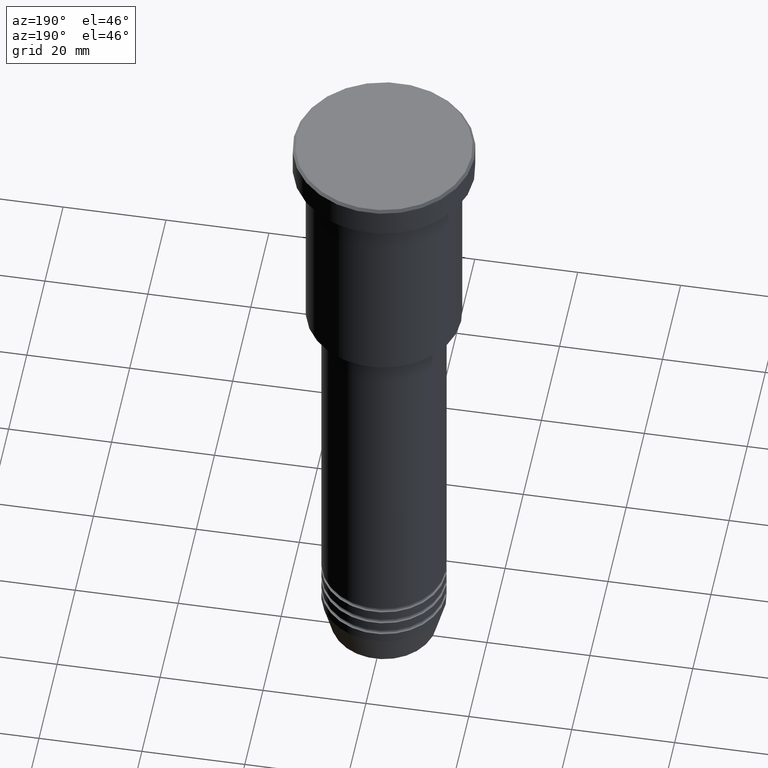
[diagram: clean part render]
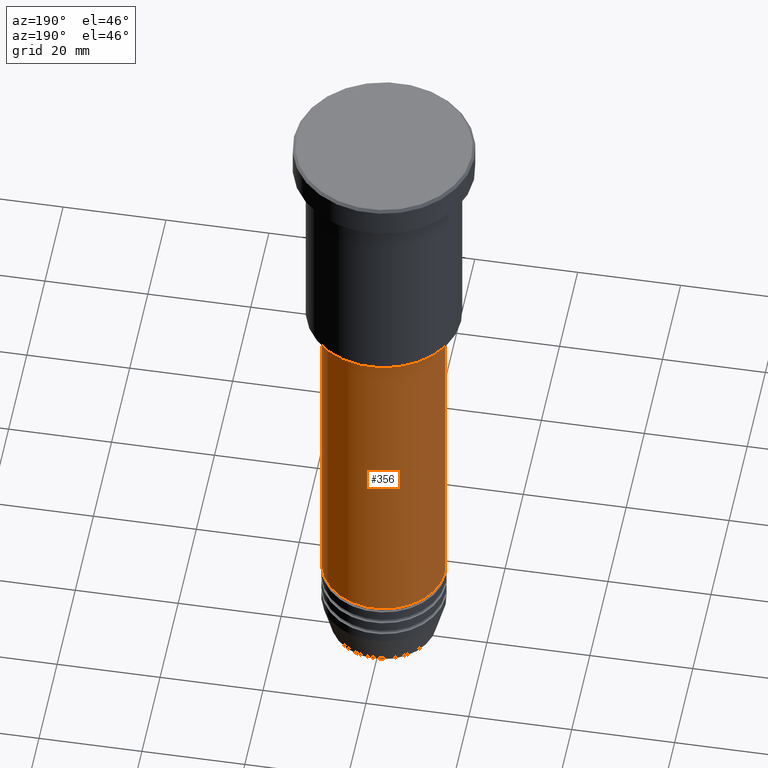
[diagram: same view with one face highlighted and labeled with its STEP entity id]
A machine part, auxiliary view. The second image highlights one B-rep face of the part: STEP entity #356.
In plain terms, the highlighted cylindrical surface (partial cylindrical patch) has radius 12 mm, axis along (-0, -0, 1).
Its self-contained STEP definition (entity closure, byte-faithful):
#41 = ORIENTED_EDGE ( 'NONE', *, *, #583, .F. ) ;
#61 = VERTEX_POINT ( 'NONE', #1127 ) ;
#142 = AXIS2_PLACEMENT_3D ( 'NONE', #964, #1163, #355 ) ;
#151 = FACE_OUTER_BOUND ( 'NONE', #1059, .T. ) ;
#217 = LINE ( 'NONE', #571, #586 ) ;
#277 = EDGE_CURVE ( 'NONE', #717, #61, #969, .T. ) ;
#298 = VERTEX_POINT ( 'NONE', #524 ) ;
#315 = CARTESIAN_POINT ( 'NONE',  ( 12.00000000000000000, 0.000000000000000000, -46.99999999999999289 ) ) ;
#320 = DIRECTION ( 'NONE',  ( 1.000000000000000000, 0.000000000000000000, 0.000000000000000000 ) ) ;
#343 = EDGE_CURVE ( 'NONE', #766, #298, #1049, .T. ) ;
#355 = DIRECTION ( 'NONE',  ( 1.000000000000000000, 0.000000000000000000, 0.000000000000000000 ) ) ;
#356 = ADVANCED_FACE ( 'NONE', ( #151 ), #864, .T. ) ;
#420 = CARTESIAN_POINT ( 'NONE',  ( 0.000000000000000000, 0.000000000000000000, -114.9999999999999574 ) ) ;
#467 = LINE ( 'NONE', #826, #970 ) ;
#475 = ORIENTED_EDGE ( 'NONE', *, *, #343, .F. ) ;
#505 = DIRECTION ( 'NONE',  ( -0.000000000000000000, -0.000000000000000000, 1.000000000000000000 ) ) ;
#524 = CARTESIAN_POINT ( 'NONE',  ( -12.00000000000000000, 1.469576158976823947E-15, -46.99999999999999289 ) ) ;
#548 = DIRECTION ( 'NONE',  ( -0.000000000000000000, -0.000000000000000000, 1.000000000000000000 ) ) ;
#571 = CARTESIAN_POINT ( 'NONE',  ( -12.00000000000000000, 1.469576158976823947E-15, 0.000000000000000000 ) ) ;
#583 = EDGE_CURVE ( 'NONE', #717, #766, #467, .T. ) ;
#586 = VECTOR ( 'NONE', #1129, 1000.000000000000000 ) ;
#607 = AXIS2_PLACEMENT_3D ( 'NONE', #1130, #678, #320 ) ;
#671 = CARTESIAN_POINT ( 'NONE',  ( 12.00000000000000000, 0.000000000000000000, -114.9999999999999574 ) ) ;
#678 = DIRECTION ( 'NONE',  ( -0.000000000000000000, -0.000000000000000000, 1.000000000000000000 ) ) ;
#717 = VERTEX_POINT ( 'NONE', #671 ) ;
#765 = EDGE_CURVE ( 'NONE', #61, #298, #217, .T. ) ;
#766 = VERTEX_POINT ( 'NONE', #315 ) ;
#826 = CARTESIAN_POINT ( 'NONE',  ( 12.00000000000000000, 0.000000000000000000, 0.000000000000000000 ) ) ;
#864 = CYLINDRICAL_SURFACE ( 'NONE', #142, 12.00000000000000000 ) ;
#898 = ORIENTED_EDGE ( 'NONE', *, *, #277, .T. ) ;
#964 = CARTESIAN_POINT ( 'NONE',  ( 0.000000000000000000, 0.000000000000000000, 0.000000000000000000 ) ) ;
#969 = CIRCLE ( 'NONE', #987, 12.00000000000000000 ) ;
#970 = VECTOR ( 'NONE', #548, 1000.000000000000000 ) ;
#987 = AXIS2_PLACEMENT_3D ( 'NONE', #420, #505, #1156 ) ;
#1049 = CIRCLE ( 'NONE', #607, 12.00000000000000000 ) ;
#1059 = EDGE_LOOP ( 'NONE', ( #898, #1112, #475, #41 ) ) ;
#1112 = ORIENTED_EDGE ( 'NONE', *, *, #765, .T. ) ;
#1127 = CARTESIAN_POINT ( 'NONE',  ( -12.00000000000000000, 1.469576158976823947E-15, -114.9999999999999574 ) ) ;
#1129 = DIRECTION ( 'NONE',  ( -0.000000000000000000, -0.000000000000000000, 1.000000000000000000 ) ) ;
#1130 = CARTESIAN_POINT ( 'NONE',  ( 0.000000000000000000, 0.000000000000000000, -46.99999999999999289 ) ) ;
#1156 = DIRECTION ( 'NONE',  ( 1.000000000000000000, 0.000000000000000000, 0.000000000000000000 ) ) ;
#1163 = DIRECTION ( 'NONE',  ( -0.000000000000000000, -0.000000000000000000, 1.000000000000000000 ) ) ;